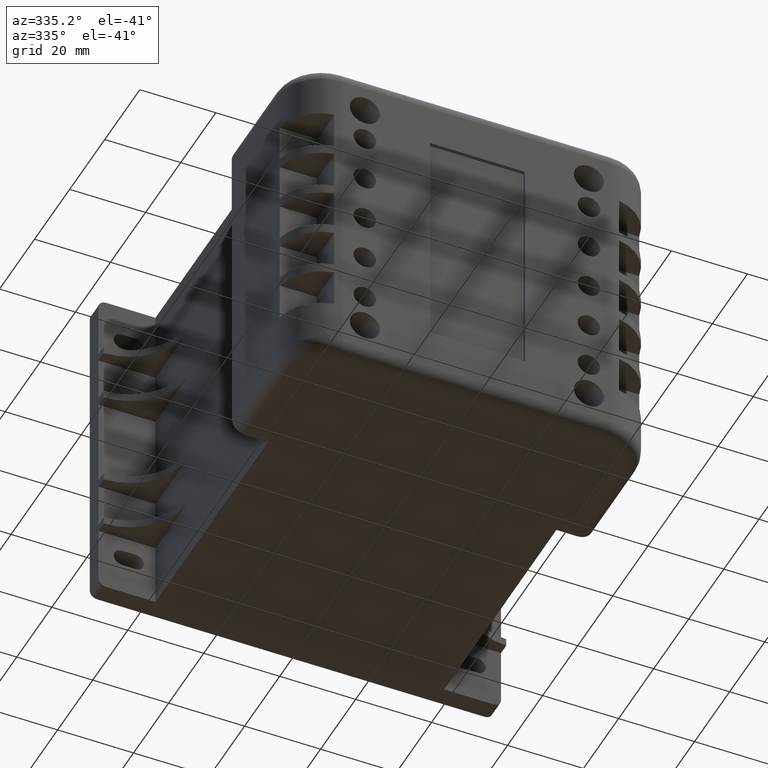
[diagram: clean part render]
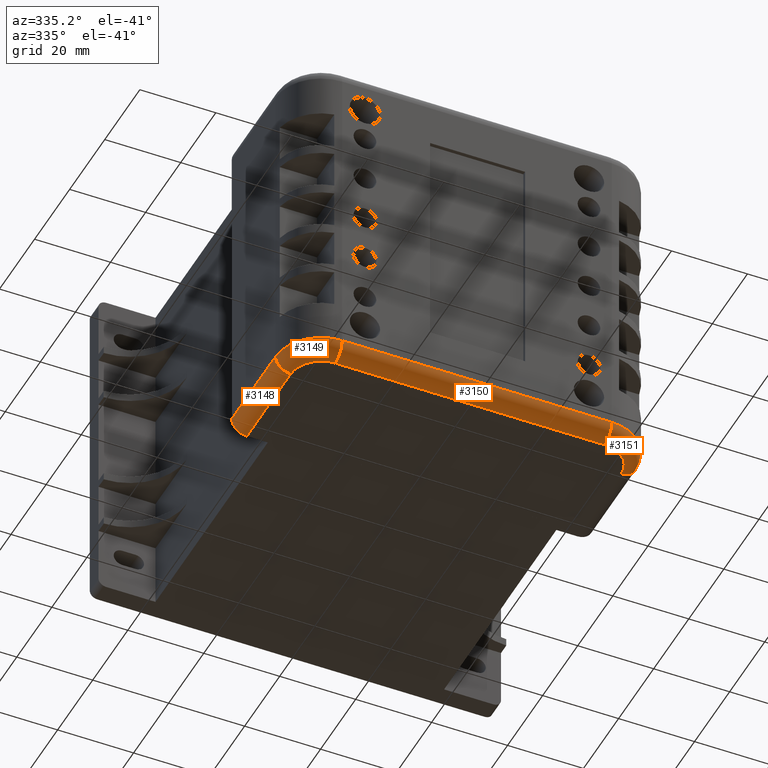
[diagram: same view with one multi-face feature highlighted, each face labeled with its STEP entity id]
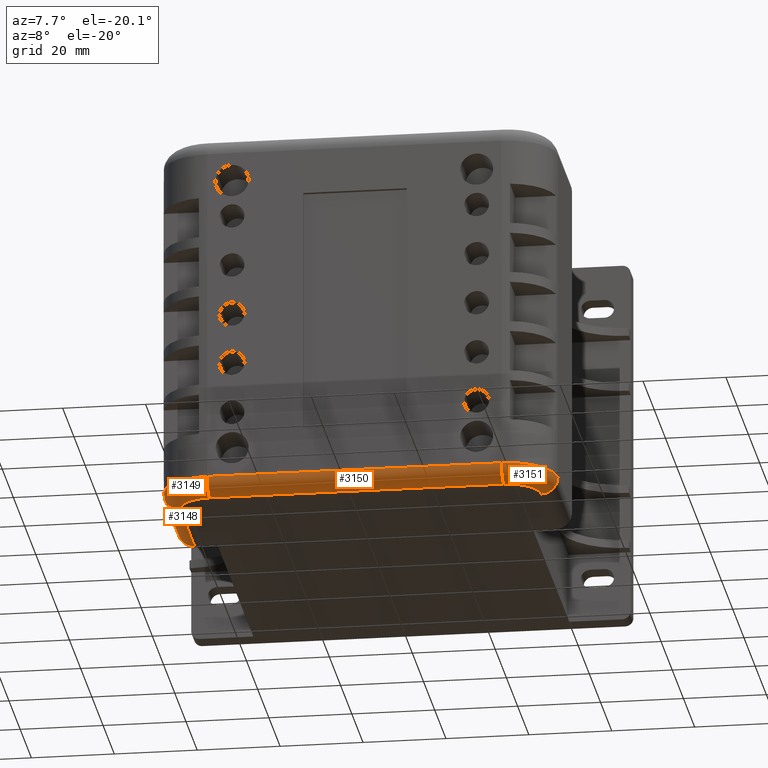
[diagram: same view with one multi-face feature highlighted, each face labeled with its STEP entity id]
A machine part, auxiliary view. The highlighted faces form ONE feature: a constant-radius fillet chain: 4 tangent blend faces with common blend radius 4 mm. The faces share edges in the B-rep.
A second angle (auxiliary view) of the same feature is appended — it is thin or edge-on in the first view.
Their STEP definitions:
[1] entity #3148 (Cylinder):
#41=CYLINDRICAL_SURFACE('',#3481,4.);
#71=CIRCLE('',#3415,4.);
#103=CIRCLE('',#3482,4.);
#279=FACE_OUTER_BOUND('',#469,.T.);
#469=EDGE_LOOP('',(#2106,#2107,#2108,#2109));
#684=LINE('',#4711,#988);
#711=LINE('',#4838,#1015);
#988=VECTOR('',#3790,10.);
#1015=VECTOR('',#3943,10.);
#1278=VERTEX_POINT('',#4693);
#1279=VERTEX_POINT('',#4695);
#1285=VERTEX_POINT('',#4709);
#1322=VERTEX_POINT('',#4836);
#1562=EDGE_CURVE('',#1279,#1278,#71,.T.);
#1570=EDGE_CURVE('',#1278,#1285,#684,.T.);
#1625=EDGE_CURVE('',#1285,#1322,#103,.T.);
#1626=EDGE_CURVE('',#1322,#1279,#711,.T.);
#2106=ORIENTED_EDGE('',*,*,#1562,.T.);
#2107=ORIENTED_EDGE('',*,*,#1570,.T.);
#2108=ORIENTED_EDGE('',*,*,#1625,.T.);
#2109=ORIENTED_EDGE('',*,*,#1626,.T.);
#3148=ADVANCED_FACE('',(#279),#41,.T.);
#3415=AXIS2_PLACEMENT_3D('',#4696,#3776,#3777);
#3481=AXIS2_PLACEMENT_3D('',#4835,#3939,#3940);
#3482=AXIS2_PLACEMENT_3D('',#4837,#3941,#3942);
#3776=DIRECTION('center_axis',(0.,1.,0.));
#3777=DIRECTION('ref_axis',(0.707106781186547,0.,-0.707106781186548));
#3790=DIRECTION('',(0.,1.,0.));
#3939=DIRECTION('center_axis',(0.,1.,0.));
#3940=DIRECTION('ref_axis',(0.707106781186547,0.,-0.707106781186548));
#3941=DIRECTION('center_axis',(0.,-1.,0.));
#3942=DIRECTION('ref_axis',(0.,0.,-1.));
#3943=DIRECTION('',(0.,-1.,0.));
#4693=CARTESIAN_POINT('',(-4.,0.,0.));
#4695=CARTESIAN_POINT('',(1.57898385724467E-15,0.,4.));
#4696=CARTESIAN_POINT('Origin',(-4.,0.,4.));
#4709=CARTESIAN_POINT('',(-4.,25.,0.));
#4711=CARTESIAN_POINT('',(-4.,0.,0.));
#4835=CARTESIAN_POINT('Origin',(-4.,0.,4.));
#4836=CARTESIAN_POINT('',(1.57898385724468E-15,25.,4.));
#4837=CARTESIAN_POINT('Origin',(-4.,25.,4.));
#4838=CARTESIAN_POINT('',(1.66533453693773E-15,0.,4.));
[2] entity #3149 (Torus):
#23=TOROIDAL_SURFACE('',#3483,8.,4.);
#74=CIRCLE('',#3419,8.);
#103=CIRCLE('',#3482,4.);
#104=CIRCLE('',#3484,4.00000000000001);
#105=CIRCLE('',#3485,12.);
#280=FACE_OUTER_BOUND('',#470,.T.);
#470=EDGE_LOOP('',(#2110,#2111,#2112,#2113));
#1284=VERTEX_POINT('',#4707);
#1285=VERTEX_POINT('',#4709);
#1322=VERTEX_POINT('',#4836);
#1323=VERTEX_POINT('',#4840);
#1569=EDGE_CURVE('',#1285,#1284,#74,.T.);
#1625=EDGE_CURVE('',#1285,#1322,#103,.T.);
#1627=EDGE_CURVE('',#1284,#1323,#104,.T.);
#1628=EDGE_CURVE('',#1323,#1322,#105,.T.);
#2110=ORIENTED_EDGE('',*,*,#1627,.T.);
#2111=ORIENTED_EDGE('',*,*,#1628,.T.);
#2112=ORIENTED_EDGE('',*,*,#1625,.F.);
#2113=ORIENTED_EDGE('',*,*,#1569,.T.);
#3149=ADVANCED_FACE('',(#280),#23,.T.);
#3419=AXIS2_PLACEMENT_3D('',#4710,#3788,#3789);
#3482=AXIS2_PLACEMENT_3D('',#4837,#3941,#3942);
#3483=AXIS2_PLACEMENT_3D('',#4839,#3944,#3945);
#3484=AXIS2_PLACEMENT_3D('',#4841,#3946,#3947);
#3485=AXIS2_PLACEMENT_3D('',#4842,#3948,#3949);
#3788=DIRECTION('center_axis',(0.,0.,1.));
#3789=DIRECTION('ref_axis',(0.707106781186548,0.707106781186548,0.));
#3941=DIRECTION('center_axis',(0.,-1.,0.));
#3942=DIRECTION('ref_axis',(0.,0.,-1.));
#3944=DIRECTION('center_axis',(0.,0.,1.));
#3945=DIRECTION('ref_axis',(1.,0.,0.));
#3946=DIRECTION('center_axis',(1.,0.,0.));
#3947=DIRECTION('ref_axis',(0.,0.,-1.));
#3948=DIRECTION('center_axis',(0.,0.,-1.));
#3949=DIRECTION('ref_axis',(0.707106781186548,0.707106781186548,0.));
#4707=CARTESIAN_POINT('',(-12.,33.,0.));
#4709=CARTESIAN_POINT('',(-4.,25.,0.));
#4710=CARTESIAN_POINT('Origin',(-12.,25.,0.));
#4836=CARTESIAN_POINT('',(1.57898385724468E-15,25.,4.));
#4837=CARTESIAN_POINT('Origin',(-4.,25.,4.));
#4839=CARTESIAN_POINT('Origin',(-12.,25.,4.00000000000001));
#4840=CARTESIAN_POINT('',(-12.,37.,4.00000000000001));
#4841=CARTESIAN_POINT('Origin',(-12.,33.,4.00000000000001));
#4842=CARTESIAN_POINT('Origin',(-12.,25.,4.00000000000001));
[3] entity #3150 (Cylinder):
#42=CYLINDRICAL_SURFACE('',#3486,4.);
#104=CIRCLE('',#3484,4.00000000000001);
#106=CIRCLE('',#3487,4.);
#281=FACE_OUTER_BOUND('',#471,.T.);
#471=EDGE_LOOP('',(#2114,#2115,#2116,#2117));
#683=LINE('',#4708,#987);
#712=LINE('',#4846,#1016);
#987=VECTOR('',#3787,10.);
#1016=VECTOR('',#3954,10.);
#1283=VERTEX_POINT('',#4705);
#1284=VERTEX_POINT('',#4707);
#1323=VERTEX_POINT('',#4840);
#1324=VERTEX_POINT('',#4844);
#1568=EDGE_CURVE('',#1284,#1283,#683,.T.);
#1627=EDGE_CURVE('',#1284,#1323,#104,.T.);
#1629=EDGE_CURVE('',#1283,#1324,#106,.T.);
#1630=EDGE_CURVE('',#1324,#1323,#712,.T.);
#2114=ORIENTED_EDGE('',*,*,#1629,.T.);
#2115=ORIENTED_EDGE('',*,*,#1630,.T.);
#2116=ORIENTED_EDGE('',*,*,#1627,.F.);
#2117=ORIENTED_EDGE('',*,*,#1568,.T.);
#3150=ADVANCED_FACE('',(#281),#42,.T.);
#3484=AXIS2_PLACEMENT_3D('',#4841,#3946,#3947);
#3486=AXIS2_PLACEMENT_3D('',#4843,#3950,#3951);
#3487=AXIS2_PLACEMENT_3D('',#4845,#3952,#3953);
#3787=DIRECTION('',(-1.,0.,0.));
#3946=DIRECTION('center_axis',(1.,0.,0.));
#3947=DIRECTION('ref_axis',(0.,0.,-1.));
#3950=DIRECTION('center_axis',(-1.,0.,0.));
#3951=DIRECTION('ref_axis',(0.,0.707106781186547,-0.707106781186548));
#3952=DIRECTION('center_axis',(1.,0.,0.));
#3953=DIRECTION('ref_axis',(0.,0.,-1.));
#3954=DIRECTION('',(1.,0.,0.));
#4705=CARTESIAN_POINT('',(-83.,33.,0.));
#4707=CARTESIAN_POINT('',(-12.,33.,0.));
#4708=CARTESIAN_POINT('',(-23.75,33.,0.));
#4840=CARTESIAN_POINT('',(-12.,37.,4.00000000000001));
#4841=CARTESIAN_POINT('Origin',(-12.,33.,4.00000000000001));
#4843=CARTESIAN_POINT('Origin',(-23.75,33.,4.));
#4844=CARTESIAN_POINT('',(-83.,37.,4.));
#4845=CARTESIAN_POINT('Origin',(-83.,33.,4.));
#4846=CARTESIAN_POINT('',(-23.75,37.,4.));
[4] entity #3151 (Torus):
#24=TOROIDAL_SURFACE('',#3488,8.,4.);
#73=CIRCLE('',#3418,8.);
#106=CIRCLE('',#3487,4.);
#107=CIRCLE('',#3489,4.00000000000003);
#108=CIRCLE('',#3490,12.);
#282=FACE_OUTER_BOUND('',#472,.T.);
#472=EDGE_LOOP('',(#2118,#2119,#2120,#2121));
#1282=VERTEX_POINT('',#4703);
#1283=VERTEX_POINT('',#4705);
#1324=VERTEX_POINT('',#4844);
#1325=VERTEX_POINT('',#4848);
#1567=EDGE_CURVE('',#1283,#1282,#73,.T.);
#1629=EDGE_CURVE('',#1283,#1324,#106,.T.);
#1631=EDGE_CURVE('',#1282,#1325,#107,.T.);
#1632=EDGE_CURVE('',#1325,#1324,#108,.T.);
#2118=ORIENTED_EDGE('',*,*,#1631,.T.);
#2119=ORIENTED_EDGE('',*,*,#1632,.T.);
#2120=ORIENTED_EDGE('',*,*,#1629,.F.);
#2121=ORIENTED_EDGE('',*,*,#1567,.T.);
#3151=ADVANCED_FACE('',(#282),#24,.T.);
#3418=AXIS2_PLACEMENT_3D('',#4706,#3785,#3786);
#3487=AXIS2_PLACEMENT_3D('',#4845,#3952,#3953);
#3488=AXIS2_PLACEMENT_3D('',#4847,#3955,#3956);
#3489=AXIS2_PLACEMENT_3D('',#4849,#3957,#3958);
#3490=AXIS2_PLACEMENT_3D('',#4850,#3959,#3960);
#3785=DIRECTION('center_axis',(0.,0.,1.));
#3786=DIRECTION('ref_axis',(-0.707106781186549,0.707106781186546,0.));
#3952=DIRECTION('center_axis',(1.,0.,0.));
#3953=DIRECTION('ref_axis',(0.,0.,-1.));
#3955=DIRECTION('center_axis',(0.,0.,1.));
#3956=DIRECTION('ref_axis',(1.,0.,0.));
#3957=DIRECTION('center_axis',(0.,1.,0.));
#3958=DIRECTION('ref_axis',(0.,0.,-1.));
#3959=DIRECTION('center_axis',(0.,0.,-1.));
#3960=DIRECTION('ref_axis',(-0.707106781186549,0.707106781186546,0.));
#4703=CARTESIAN_POINT('',(-91.,25.,0.));
#4705=CARTESIAN_POINT('',(-83.,33.,0.));
#4706=CARTESIAN_POINT('Origin',(-83.,25.,0.));
#4844=CARTESIAN_POINT('',(-83.,37.,4.));
#4845=CARTESIAN_POINT('Origin',(-83.,33.,4.));
#4847=CARTESIAN_POINT('Origin',(-83.,25.,4.00000000000003));
#4848=CARTESIAN_POINT('',(-95.,25.,4.00000000000003));
#4849=CARTESIAN_POINT('Origin',(-91.,25.,4.00000000000003));
#4850=CARTESIAN_POINT('Origin',(-83.,25.,4.00000000000003));